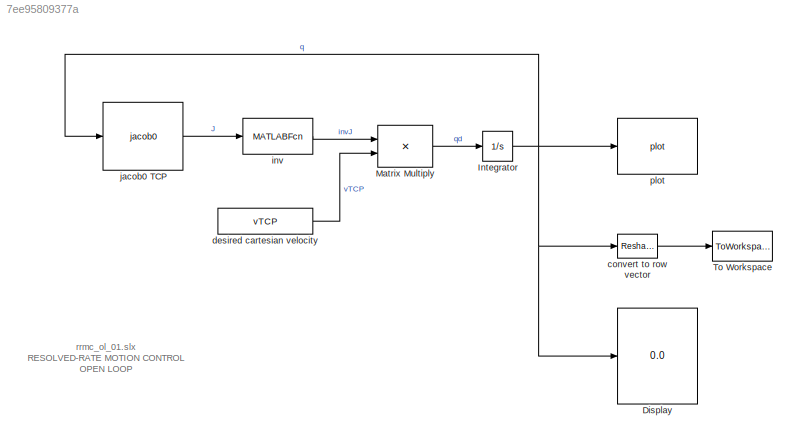
MODEL slx_7ee95809377a
KIND model
CONFIG AbsTol = auto
CONFIG FixedStep = step_time
CONFIG MaxStep = 0.01
CONFIG MinStep = auto
CONFIG RelTol = 1e-3
CONFIG SampleTimeConstraint = Unconstrained
CONFIG Solver = ode1
CONFIG SolverMode = Auto
CONFIG SolverName = ode1
CONFIG StartTime = 0.0
CONFIG StopTime = stop_time
BLOCK [Display] Display
  Decimation = 1
  Ports = [1]
BLOCK [Integrator] Integrator
  InitialCondition = qvet_ini
  Ports = [1, 1]
BLOCK [Product] Matrix Multiply
  InputSameDT = off
  Multiplication = Matrix(*)
  OutDataTypeStr = Inherit: Inherit via internal rule
  Ports = [2, 1]
  RndMeth = Floor
  SaturateOnIntegerOverflow = off
BLOCK [ToWorkspace] To Workspace
  FixptAsFi = on
  MaxDataPoints = inf
  Ports = [1]
  SampleTime = -1
  Save2DSignal = 3-D array (concatenate along third dimension)
  VariableName = qvet
BLOCK [Reshape] convert to row vector
  OutputDimensions = 6
  Ports = [1, 1]
BLOCK [Constant] desired cartesian velocity
  Value = vTCP
  VectorParams1D = off
BLOCK [MATLABFcn] inv
  MATLABFcn = inv
  Output1D = off
  Ports = [1, 1]
BLOCK [Reference] jacob0 TCP   REF=roblocks/Kinematics/jacob0  (lib defined in mdl_2a292b13c81b, mdl_69400f8cfe22, +12 more)

  Ports = [1, 1]
  SourceBlock = roblocks/Kinematics/jacob0
  robot = rob6R
BLOCK [Reference] plot  REF=roblocks/Robot Graphics/plot  (lib defined in mdl_2a292b13c81b, mdl_69400f8cfe22, +12 more)
  Ports = [1]
  SourceBlock = roblocks/Robot Graphics/plot
  fps = 25
  holdplot = on
  robot = rob6R
ANNOTATION (root): rrmc_ol_01.slx RESOLVED-RATE MOTION CONTROL OPEN LOOP
NET Integrator:1 -> Display:1, convert to row vector:1, jacob0 TCP :1, plot:1
LINE Matrix Multiply:1 -> Integrator:1
LINE convert to row vector:1 -> To Workspace:1
LINE desired cartesian velocity:1 -> Matrix Multiply:2
LINE inv:1 -> Matrix Multiply:1
LINE jacob0 TCP :1 -> inv:1
note: NET lines group one-source signal fan-out (src -> all destinations, sorted); 1:1 wires keep LINE
